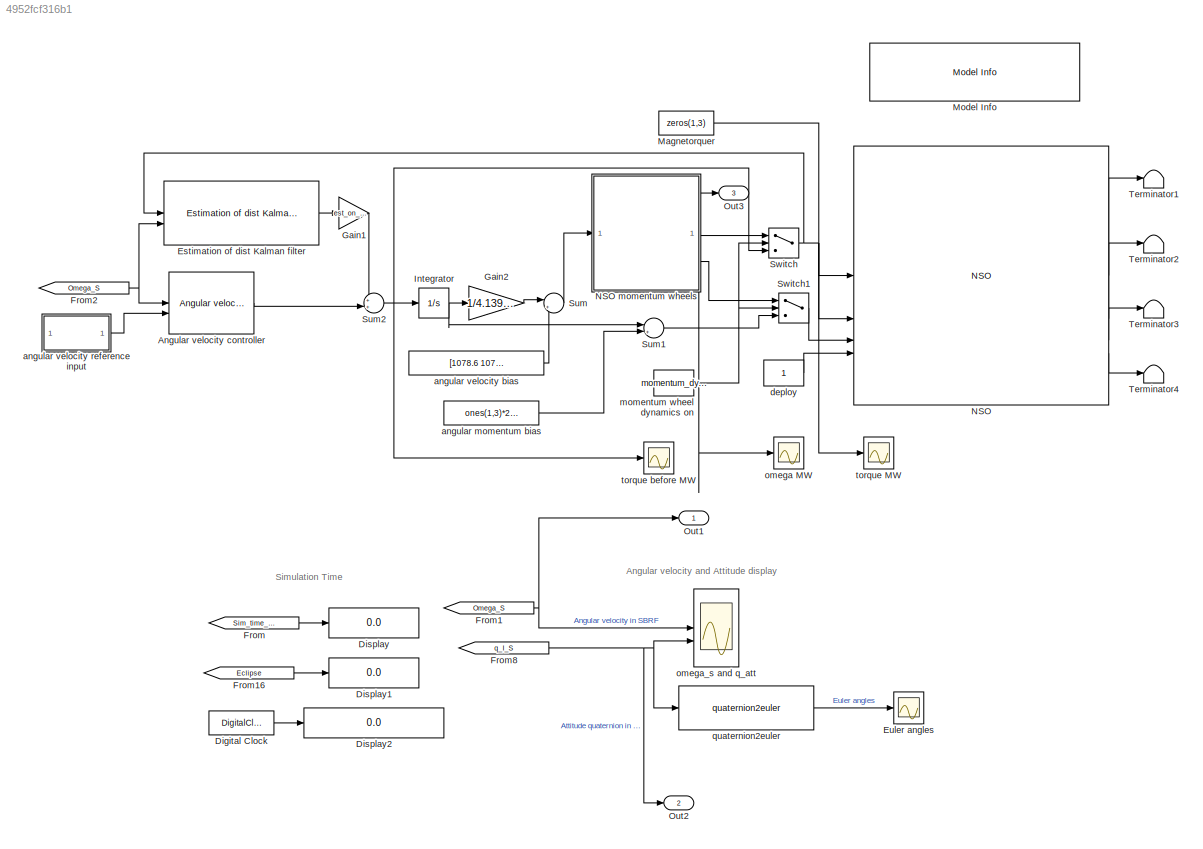
MODEL mdl_4952fcf316b1
KIND model
CONFIG AbsTol = auto
CONFIG EnableMultiTasking = on
CONFIG FixedStep = auto
CONFIG MaxStep = auto
CONFIG MinStep = auto
CONFIG RelTol = 1e-3
CONFIG SampleTimeConstraint = Unconstrained
CONFIG SolverName = ode45
CONFIG StartTime = 0.0
CONFIG StopTime = 6179
BLOCK [Reference] Angular velocity controller  REF=components_lib/ACS/Controllers/Angular velocity   (lib defined in mdl_419550584dda)
controller
  SourceBlock = components_lib/ACS/Controllers/Angular velocity \ncontroller
  SourceType = Angular Velocity Controller
BLOCK [DigitalClock] Digital Clock
BLOCK [Display] Display
  Decimation = 1
BLOCK [Display] Display1
  Decimation = 1
BLOCK [Display] Display2
  Decimation = 1
  Format = long
BLOCK [Reference] Estimation of dist Kalman filter  REF=components_lib/ACS/Controllers/Estimation of dist  (lib defined in mdl_419550584dda)
Kalman filter
  SourceBlock = components_lib/ACS/Controllers/Estimation of dist\nKalman filter
  SourceType = Estimator Block
BLOCK [Scope] Euler angles
  Floating = off
  NumInputPorts = 1
  ScopeSpecificationString = C++SS(StrPVP('Location','[504, 309, 982, 762]'),StrPVP('Open','off'),MxPVP('AxesTitles',54,'struct(''axes1'',''%<SignalLabel>'')'),StrPVP('YMin','-3.5'),StrPVP('YMax','3.5'),StrPVP('SaveName','ScopeData1'),StrPVP('DataFormat','StructureWithTime'),StrPVP('LimitDataPoints','off'),StrPVP('BlockParamSampleTime','0'),StrPVP('Decimation','1'),StrPVP('BlockParamSampleInput','off'))
BLOCK [From] From
  CloseFcn = tagdialog Close
  GotoTag = Sim_time_JD
  TagVisibility = global
BLOCK [From] From1
  CloseFcn = tagdialog Close
  GotoTag = Omega_S
  TagVisibility = global
BLOCK [From] From16
  CloseFcn = tagdialog Close
  GotoTag = Eclipse
  TagVisibility = global
BLOCK [From] From2
  CloseFcn = tagdialog Close
  GotoTag = Omega_S
  TagVisibility = global
BLOCK [From] From8
  CloseFcn = tagdialog Close
  GotoTag = q_I_S
  TagVisibility = global
BLOCK [Gain] Gain1
  Gain = est_on_off
BLOCK [Gain] Gain2
  Gain = 1/4.139e-6
BLOCK [Integrator] Integrator
BLOCK [Constant] Magnetorquer
  Value = zeros(1,3)
BLOCK [Reference] Model Info  REF=simulink/Model-Wide
Utilities/Model Info
  SourceBlock = simulink/Model-Wide\nUtilities/Model Info
  SourceType = CMBlock
BLOCK [Reference] NSO  REF=components_lib/NSO  (lib defined in mdl_419550584dda)
  Description = AAUSAT-II Model
  SourceBlock = components_lib/NSO
  Tag = AAUSAT-II Model
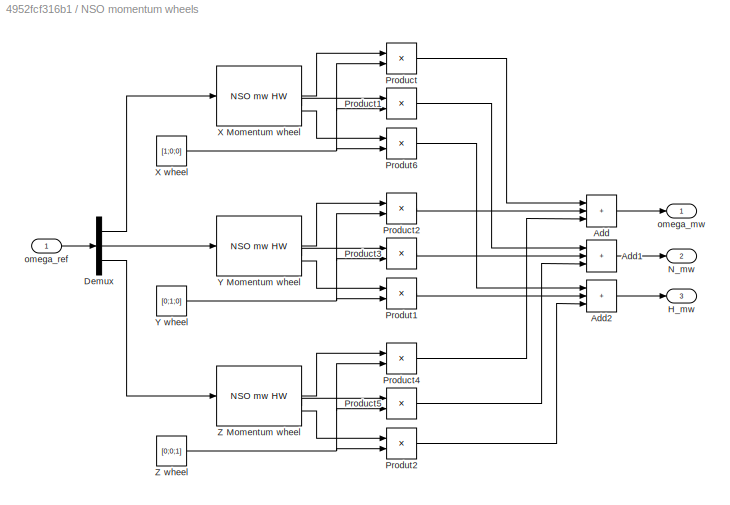
BLOCK [SubSystem] NSO momentum wheels
  AncestorBlock = components_lib/Actuator Emulation/NSO momentum wheels
BLOCK [Sum] NSO momentum wheels/Add
  IconShape = rectangular
  Inputs = +++
BLOCK [Sum] NSO momentum wheels/Add1
  IconShape = rectangular
  Inputs = +++
BLOCK [Sum] NSO momentum wheels/Add2
  IconShape = rectangular
  Inputs = +++
BLOCK [Demux] NSO momentum wheels/Demux
  Outputs = 3
BLOCK [Outport] NSO momentum wheels/H_mw
  Port = 3
  PortDimensions = 3
BLOCK [Outport] NSO momentum wheels/N_mw
  Port = 2
  PortDimensions = 3
BLOCK [Product] NSO momentum wheels/Product
  RndMeth = Zero
BLOCK [Product] NSO momentum wheels/Product1
  RndMeth = Zero
BLOCK [Product] NSO momentum wheels/Product2
  RndMeth = Zero
BLOCK [Product] NSO momentum wheels/Product3
  RndMeth = Zero
BLOCK [Product] NSO momentum wheels/Product4
  RndMeth = Zero
BLOCK [Product] NSO momentum wheels/Product5
  RndMeth = Zero
BLOCK [Product] NSO momentum wheels/Produt1
  RndMeth = Zero
BLOCK [Product] NSO momentum wheels/Produt2
  RndMeth = Zero
BLOCK [Product] NSO momentum wheels/Produt6
  RndMeth = Zero
BLOCK [Reference] NSO momentum wheels/X Momentum wheel  REF=components_lib/Actuator Emulation/NSO mw HW  (lib defined in mdl_419550584dda)
  SourceBlock = components_lib/Actuator Emulation/NSO mw HW
BLOCK [Constant] NSO momentum wheels/X wheel
  Value = [1;0;0]
BLOCK [Reference] NSO momentum wheels/Y Momentum wheel  REF=components_lib/Actuator Emulation/NSO mw HW  (lib defined in mdl_419550584dda)
  SourceBlock = components_lib/Actuator Emulation/NSO mw HW
BLOCK [Constant] NSO momentum wheels/Y wheel
  Value = [0;1;0]
BLOCK [Reference] NSO momentum wheels/Z Momentum wheel  REF=components_lib/Actuator Emulation/NSO mw HW  (lib defined in mdl_419550584dda)
  SourceBlock = components_lib/Actuator Emulation/NSO mw HW
BLOCK [Constant] NSO momentum wheels/Z wheel
  Value = [0;0;1]
BLOCK [Outport] NSO momentum wheels/omega_mw
  PortDimensions = 3
BLOCK [Inport] NSO momentum wheels/omega_ref
BLOCK [Outport] Out1
BLOCK [Outport] Out2
  Port = 2
BLOCK [Outport] Out3
  Port = 3
BLOCK [Sum] Sum
  Inputs = |++
BLOCK [Sum] Sum1
  Inputs = |++
BLOCK [Sum] Sum2
  Inputs = ++|
BLOCK [Switch] Switch
  InputSameDT = off
  SaturateOnIntegerOverflow = off
  Threshold = 1
BLOCK [Switch] Switch1
  InputSameDT = off
  SaturateOnIntegerOverflow = off
  Threshold = 1
BLOCK [Terminator] Terminator1
BLOCK [Terminator] Terminator2
BLOCK [Terminator] Terminator3
BLOCK [Terminator] Terminator4
BLOCK [Constant] angular momentum bias
  Value = ones(1,3)*2.23e-3
BLOCK [Constant] angular velocity bias
  Value = [1078.6 1078.6 1078.6] *0.5
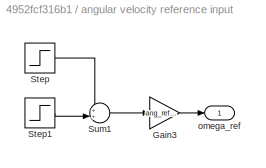
BLOCK [SubSystem] angular velocity reference input
BLOCK [Gain] angular velocity reference input/Gain3
  Gain = ang_ref_value
BLOCK [Step] angular velocity reference input/Step
  SampleTime = 0
  Time = ref_change1
BLOCK [Step] angular velocity reference input/Step1
  After = -1
  SampleTime = 0
  Time = ref_change2
BLOCK [Sum] angular velocity reference input/Sum1
  Inputs = ++|
BLOCK [Outport] angular velocity reference input/omega_ref
BLOCK [Constant] deploy
BLOCK [Constant] momentum wheel dynamics on
  Value = momentum_dyn_on
BLOCK [Scope] omega MW
  Floating = off
  NumInputPorts = 1
  ScopeSpecificationString = C++SS(StrPVP('Location','[504, 309, 982, 762]'),StrPVP('Open','off'),MxPVP('AxesTitles',54,'struct(''axes1'',''%<SignalLabel>'')'),StrPVP('YMin','0'),StrPVP('YMax','600'),StrPVP('SaveName','ScopeData3'),StrPVP('DataFormat','StructureWithTime'),StrPVP('LimitDataPoints','off'),StrPVP('BlockParamSampleTime','0'),StrPVP('Decimation','1'),StrPVP('BlockParamSampleInput','off'))
BLOCK [Scope] omega_s and q_att
  Floating = off
  NumInputPorts = 2
  ScopeSpecificationString = C++SS(StrPVP('Location','[322, 194, 761, 632]'),StrPVP('Open','off'),StrPVP('ZoomMode','xonly'),MxPVP('AxesTitles',54,'struct(''axes1'',''%<SignalLabel>'',''axes2'',''%<SignalLabel>'')'),StrPVP('YMin','-1e-05~-0.8'),StrPVP('YMax','1e-05~0.5'),StrPVP('DataFormat','StructureWithTime'),StrPVP('LimitDataPoints','off'),StrPVP('BlockParamSampleTime','0'),StrPVP('Decimation','1'),StrPVP('BlockParamSample...<+14ch>
BLOCK [Reference] quaternion2euler  REF=components_lib/Math utilities/Quaternion operations/quaternion2euler  (lib defined in mdl_419550584dda)
  SourceBlock = components_lib/Math utilities/Quaternion operations/quaternion2euler
  SourceType = SubSystem
BLOCK [Scope] torque MW
  Floating = off
  NumInputPorts = 1
  ScopeSpecificationString = C++SS(StrPVP('Location','[73, 168, 551, 621]'),StrPVP('Open','off'),MxPVP('AxesTitles',54,'struct(''axes1'',''%<SignalLabel>'')'),StrPVP('YMin','-2.75e-06'),StrPVP('YMax','7.5e-07'),StrPVP('SaveName','ScopeData2'),StrPVP('DataFormat','StructureWithTime'),StrPVP('LimitDataPoints','off'),StrPVP('BlockParamSampleTime','0'),StrPVP('Decimation','1'),StrPVP('BlockParamSampleInput','off'))
BLOCK [Scope] torque before MW
  Floating = off
  NumInputPorts = 1
  ScopeSpecificationString = C++SS(StrPVP('Location','[504, 309, 982, 762]'),StrPVP('Open','off'),MxPVP('AxesTitles',54,'struct(''axes1'',''%<SignalLabel>'')'),StrPVP('YMin','-3.5'),StrPVP('YMax','3.5'),StrPVP('SaveName','ScopeData4'),StrPVP('DataFormat','StructureWithTime'),StrPVP('LimitDataPoints','off'),StrPVP('BlockParamSampleTime','0'),StrPVP('Decimation','1'),StrPVP('BlockParamSampleInput','off'))
ANNOTATION (root): Angular velocity and Attitude display
ANNOTATION (root): Simulation Time
LINE Angular velocity controller:1 -> Sum2:2
LINE Digital Clock:1 -> Display2:1
LINE Estimation of dist Kalman filter:1 -> Gain1:1
LINE From16:1 -> Display1:1
NET From1:1 -> Out1:1, omega_s and q_att:1
NET From2:1 -> Angular velocity controller:1, Estimation of dist Kalman filter:2
NET From8:1 -> Out2:1, omega_s and q_att:2, quaternion2euler:1
LINE From:1 -> Display:1
LINE Gain1:1 -> Sum2:1
LINE Gain2:1 -> Sum:1
NET Integrator:1 -> Gain2:1, Sum1:1
LINE Magnetorquer:1 -> NSO:1
NET NSO momentum wheels:1 -> Out3:1, omega MW:1
LINE NSO momentum wheels:2 -> Switch:1
LINE NSO momentum wheels:3 -> Switch1:1
LINE NSO:1 -> Terminator1:1
LINE NSO:2 -> Terminator2:1
LINE NSO:3 -> Terminator3:1
LINE NSO:4 -> Terminator4:1
LINE Sum1:1 -> Switch1:3
NET Sum2:1 -> Integrator:1, Switch:3, torque before MW:1
LINE Sum:1 -> NSO momentum wheels:1
LINE Switch1:1 -> NSO:3
NET Switch:1 -> Estimation of dist Kalman filter:1, NSO:2, torque MW:1
LINE angular momentum bias:1 -> Sum1:2
LINE angular velocity bias:1 -> Sum:2
LINE angular velocity reference input/Gain3:1 -> angular velocity reference input/omega_ref:1
LINE angular velocity reference input/Step1:1 -> angular velocity reference input/Sum1:2
LINE angular velocity reference input/Step:1 -> angular velocity reference input/Sum1:1
LINE angular velocity reference input/Sum1:1 -> angular velocity reference input/Gain3:1
LINE angular velocity reference input:1 -> Angular velocity controller:2
LINE deploy:1 -> NSO:4
NET momentum wheel dynamics on:1 -> Switch1:2, Switch:2
LINE quaternion2euler:1 -> Euler angles:1
note: NET lines group one-source signal fan-out (src -> all destinations, sorted); 1:1 wires keep LINE
